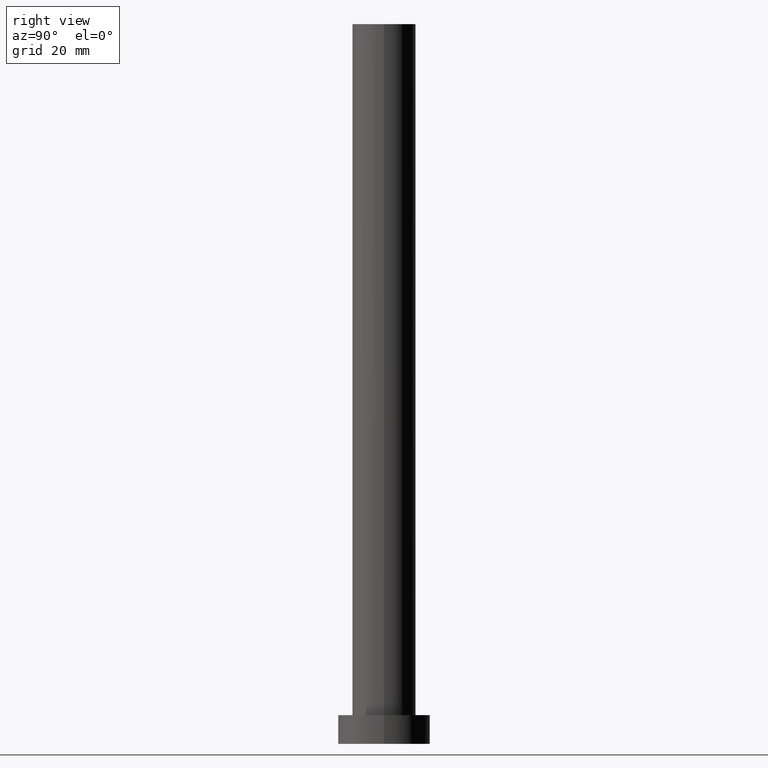
[diagram: clean part render]
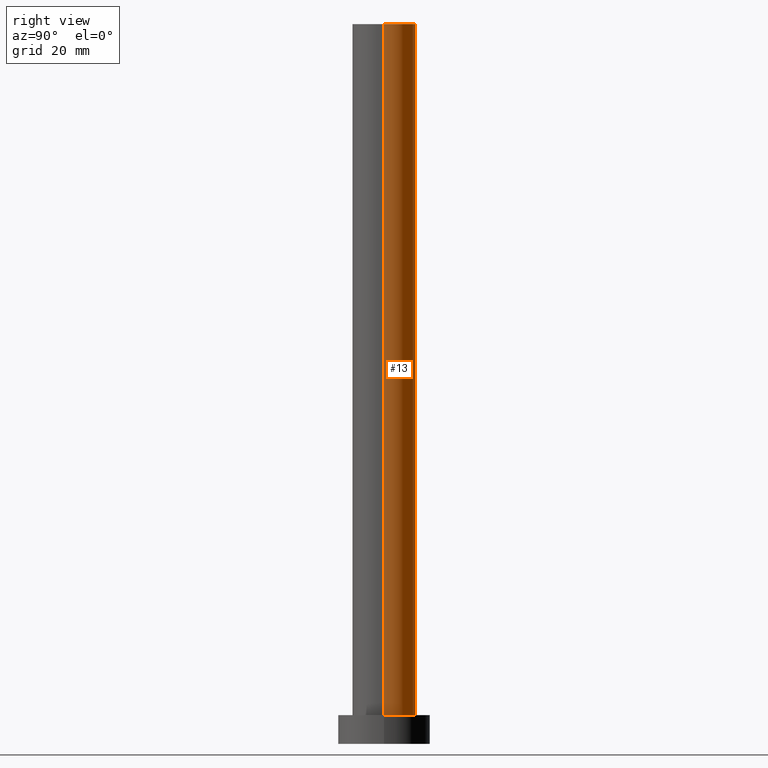
[diagram: same view with one face highlighted and labeled with its STEP entity id]
A machine part, right view. The second image highlights one B-rep face of the part: STEP entity #13.
In plain terms, the highlighted cylindrical surface (edge-blend (fillet) strip) has radius 5.5 mm, axis along (-0, -0, -1).
Its self-contained STEP definition (entity closure, byte-faithful):
#5 = DIRECTION ( 'NONE',  ( 0.000000000000000000, 0.000000000000000000, 1.000000000000000000 ) ) ;
#12 = ORIENTED_EDGE ( 'NONE', *, *, #60, .T. ) ;
#13 = ADVANCED_FACE ( 'NONE', ( #146 ), #222, .T. ) ;
#18 = CARTESIAN_POINT ( 'NONE',  ( 5.500000000000000000, 6.735557395310442023E-16, 125.0000000000000000 ) ) ;
#19 = ORIENTED_EDGE ( 'NONE', *, *, #118, .T. ) ;
#22 = DIRECTION ( 'NONE',  ( -1.000000000000000000, 0.000000000000000000, 0.000000000000000000 ) ) ;
#24 = VECTOR ( 'NONE', #116, 1000.000000000000000 ) ;
#27 = DIRECTION ( 'NONE',  ( 1.000000000000000000, 0.000000000000000000, 0.000000000000000000 ) ) ;
#29 = CARTESIAN_POINT ( 'NONE',  ( 5.500000000000000000, 6.735557395310442023E-16, 5.000000000000000000 ) ) ;
#34 = CARTESIAN_POINT ( 'NONE',  ( -5.500000000000000000, 0.000000000000000000, 125.0000000000000000 ) ) ;
#35 = VERTEX_POINT ( 'NONE', #29 ) ;
#38 = DIRECTION ( 'NONE',  ( -0.000000000000000000, -0.000000000000000000, -1.000000000000000000 ) ) ;
#39 = LINE ( 'NONE', #34, #24 ) ;
#40 = CARTESIAN_POINT ( 'NONE',  ( 5.500000000000000000, 6.735557395310442023E-16, 125.0000000000000000 ) ) ;
#50 = EDGE_CURVE ( 'NONE', #136, #191, #178, .T. ) ;
#51 = CARTESIAN_POINT ( 'NONE',  ( -5.500000000000000000, 0.000000000000000000, 5.000000000000000000 ) ) ;
#52 = EDGE_LOOP ( 'NONE', ( #93, #19, #12, #227 ) ) ;
#60 = EDGE_CURVE ( 'NONE', #35, #216, #79, .T. ) ;
#79 = CIRCLE ( 'NONE', #214, 5.500000000000000000 ) ;
#93 = ORIENTED_EDGE ( 'NONE', *, *, #50, .F. ) ;
#94 = CARTESIAN_POINT ( 'NONE',  ( -5.500000000000000000, 0.000000000000000000, 125.0000000000000000 ) ) ;
#99 = VECTOR ( 'NONE', #38, 1000.000000000000000 ) ;
#111 = CARTESIAN_POINT ( 'NONE',  ( 0.000000000000000000, 0.000000000000000000, 5.000000000000000000 ) ) ;
#113 = DIRECTION ( 'NONE',  ( 0.000000000000000000, 0.000000000000000000, 1.000000000000000000 ) ) ;
#116 = DIRECTION ( 'NONE',  ( -0.000000000000000000, -0.000000000000000000, -1.000000000000000000 ) ) ;
#118 = EDGE_CURVE ( 'NONE', #136, #35, #195, .T. ) ;
#136 = VERTEX_POINT ( 'NONE', #40 ) ;
#146 = FACE_OUTER_BOUND ( 'NONE', #52, .T. ) ;
#148 = AXIS2_PLACEMENT_3D ( 'NONE', #203, #234, #22 ) ;
#169 = CARTESIAN_POINT ( 'NONE',  ( 0.000000000000000000, 0.000000000000000000, 125.0000000000000000 ) ) ;
#178 = CIRCLE ( 'NONE', #193, 5.500000000000000000 ) ;
#191 = VERTEX_POINT ( 'NONE', #94 ) ;
#193 = AXIS2_PLACEMENT_3D ( 'NONE', #169, #113, #27 ) ;
#195 = LINE ( 'NONE', #18, #99 ) ;
#196 = EDGE_CURVE ( 'NONE', #191, #216, #39, .T. ) ;
#203 = CARTESIAN_POINT ( 'NONE',  ( 0.000000000000000000, 0.000000000000000000, 125.0000000000000000 ) ) ;
#214 = AXIS2_PLACEMENT_3D ( 'NONE', #111, #5, #241 ) ;
#216 = VERTEX_POINT ( 'NONE', #51 ) ;
#222 = CYLINDRICAL_SURFACE ( 'NONE', #148, 5.500000000000000000 ) ;
#227 = ORIENTED_EDGE ( 'NONE', *, *, #196, .F. ) ;
#234 = DIRECTION ( 'NONE',  ( -0.000000000000000000, -0.000000000000000000, -1.000000000000000000 ) ) ;
#241 = DIRECTION ( 'NONE',  ( 1.000000000000000000, 0.000000000000000000, 0.000000000000000000 ) ) ;